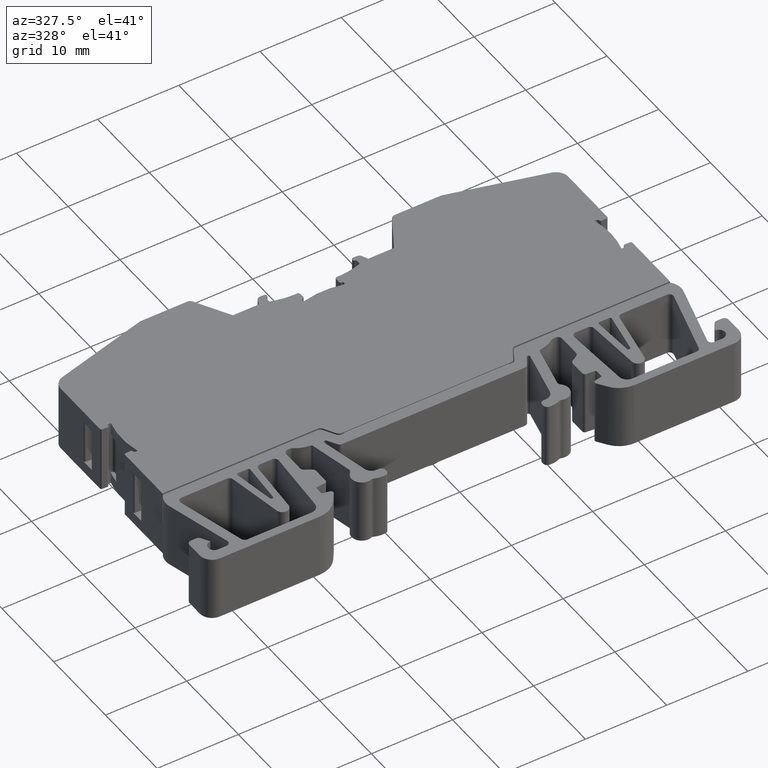
[diagram: clean part render]
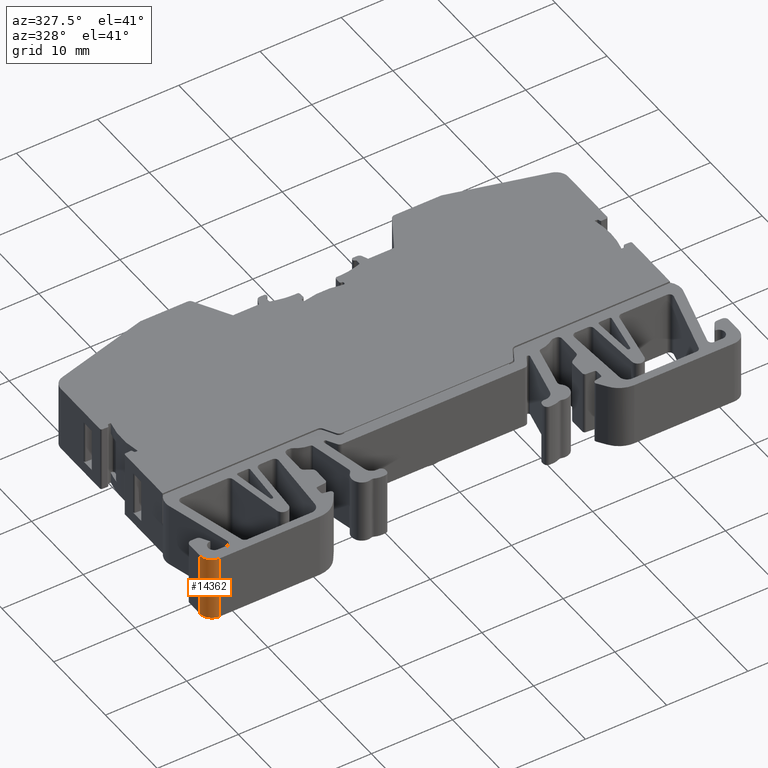
[diagram: same view with one face highlighted and labeled with its STEP entity id]
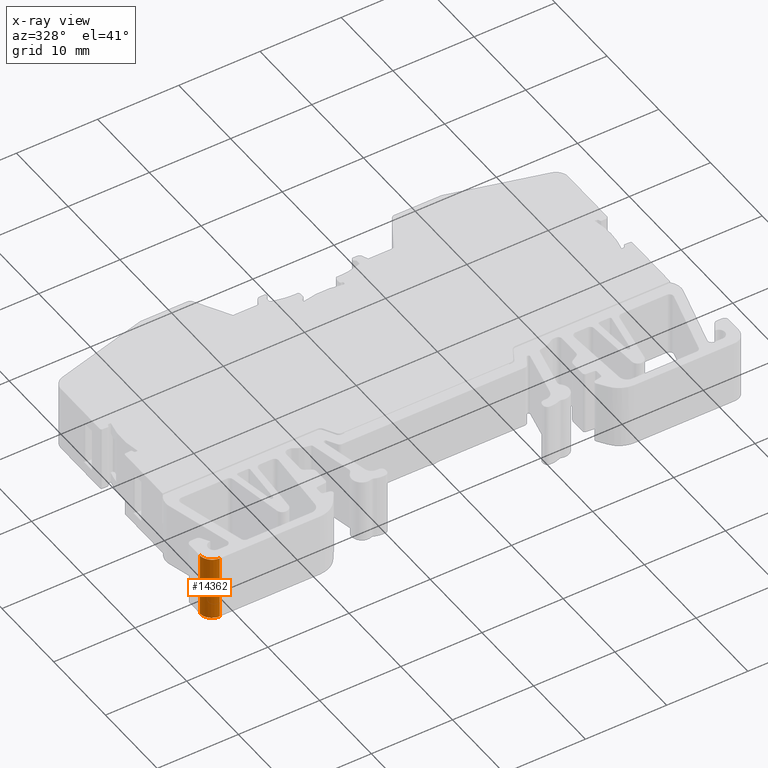
[diagram: x-ray of the same camera — body ghosted, the highlighted face saturated]
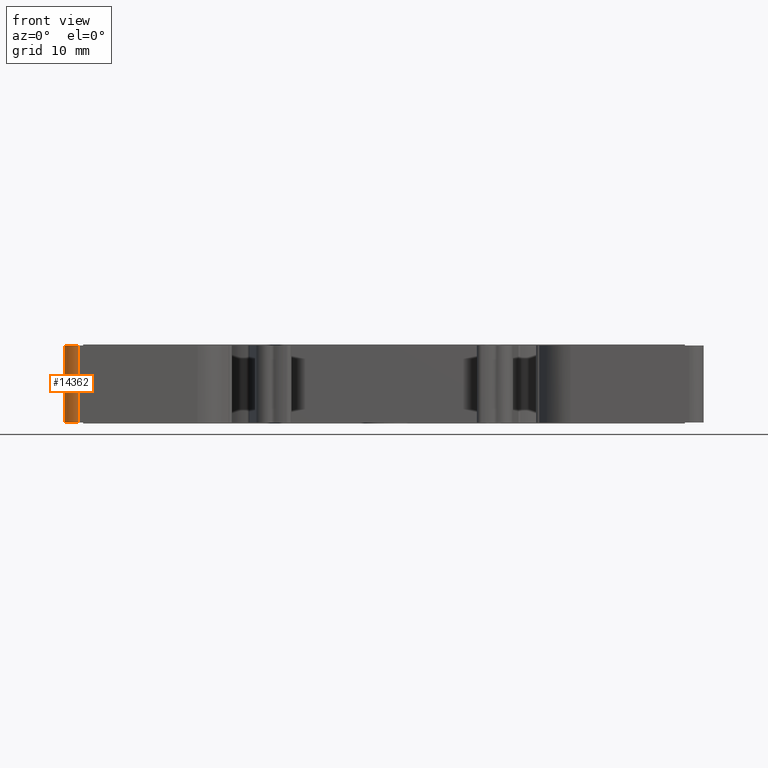
[diagram: same view with one face highlighted and labeled with its STEP entity id]
A machine part, auxiliary view. The second image highlights one B-rep face of the part: STEP entity #14362.
The next image is the same camera in x-ray: the body ghosted, the highlighted face saturated — about 0% of this face is hidden behind the body in this view.
A second angle (front view) of the same face is appended — the face is thin or edge-on in the first view.
In plain terms, the highlighted cylindrical surface (edge-blend (fillet) strip) has radius 1.5 mm, axis along (0, 0, -1).
Its self-contained STEP definition (entity closure, byte-faithful):
#2511 = CARTESIAN_POINT ( 'NONE',  ( 147.6236997450563700, -4.423864766311485400, -20.60000000000000100 ) ) ;
#3452 = EDGE_CURVE ( 'NONE', #14301, #14324, #6314, .T. ) ;
#3631 = EDGE_CURVE ( 'NONE', #14324, #13513, #6378, .T. ) ;
#3642 = EDGE_CURVE ( 'NONE', #13513, #13609, #6422, .T. ) ;
#3649 = EDGE_CURVE ( 'NONE', #13609, #14301, #9277, .T. ) ;
#4666 = CARTESIAN_POINT ( 'NONE',  ( 147.6236997450563400, -4.423864795650505500, -12.60000000000000000 ) ) ;
#4697 = CARTESIAN_POINT ( 'NONE',  ( 146.1236962811356400, -2.923860183846762600, -12.60000000000000000 ) ) ;
#4778 = CARTESIAN_POINT ( 'NONE',  ( 147.6236997450564000, -2.923861286785385300, -12.60000000000000000 ) ) ;
#4788 = CYLINDRICAL_SURFACE ( 'NONE', #10491, 1.500003463920235300 ) ;
#4805 = FACE_OUTER_BOUND ( 'NONE', #16904, .T. ) ;
#4806 = DIRECTION ( 'NONE',  ( 0.0000000000000000000, 0.0000000000000000000, -1.000000000000000000 ) ) ;
#4807 = DIRECTION ( 'NONE',  ( -1.000000000000000000, 0.0000000000000000000, 0.0000000000000000000 ) ) ;
#6314 = B_SPLINE_CURVE_WITH_KNOTS ( 'NONE', 3,
 ( #15248, #15241, #15228, #15232, #15231, #15250, #15203, #15249, #15229, #15246 ),
 .UNSPECIFIED., .F., .F.,
 ( 4, 2, 2, 2, 4 ),
 ( 0.0000000000000000000, 0.2500000000000000000, 0.5000000000000000000, 0.7500000000000000000, 1.000000000000000000 ),
 .UNSPECIFIED. ) ;
#6378 = B_SPLINE_CURVE_WITH_KNOTS ( 'NONE', 3,
 ( #9189, #9261, #9267, #9243 ),
 .UNSPECIFIED., .F., .F.,
 ( 4, 4 ),
 ( 0.0000000000000000000, 1.000000000000000000 ),
 .UNSPECIFIED. ) ;
#6422 = B_SPLINE_CURVE_WITH_KNOTS ( 'NONE', 3,
 ( #9259, #9265, #9301, #9286, #9300, #9278, #9274, #9268, #9283, #9271 ),
 .UNSPECIFIED., .F., .F.,
 ( 4, 2, 2, 2, 4 ),
 ( 0.0000000000000000000, 0.2500000000000002200, 0.5000000000000004400, 0.7500000000000002200, 1.000000000000000000 ),
 .UNSPECIFIED. ) ;
#6986 = VECTOR ( 'NONE', #9302, 1000.000000000000000 ) ;
#7637 = CARTESIAN_POINT ( 'NONE',  ( 146.1236962811366900, -2.923860183846763500, -20.60000000000000100 ) ) ;
#9189 = CARTESIAN_POINT ( 'NONE',  ( 146.1236962811356400, -2.923860183846762600, -12.60000000000000000 ) ) ;
#9243 = CARTESIAN_POINT ( 'NONE',  ( 146.1236962811366900, -2.923860183846763500, -20.60000000000000100 ) ) ;
#9259 = CARTESIAN_POINT ( 'NONE',  ( 146.1236962811366900, -2.923860183846763500, -20.60000000000000100 ) ) ;
#9261 = CARTESIAN_POINT ( 'NONE',  ( 146.1236962811361800, -2.923861164236650500, -15.26666666666666600 ) ) ;
#9265 = CARTESIAN_POINT ( 'NONE',  ( 146.1236962811362300, -3.120211281060845100, -20.60000000000000900 ) ) ;
#9267 = CARTESIAN_POINT ( 'NONE',  ( 146.1236962811361800, -2.923861409334120000, -17.93333333333474800 ) ) ;
#9268 = CARTESIAN_POINT ( 'NONE',  ( 147.2310770118436900, -4.384823675551517800, -20.60000000000000500 ) ) ;
#9271 = CARTESIAN_POINT ( 'NONE',  ( 147.6236997450563700, -4.423864766311485400, -20.60000000000000100 ) ) ;
#9274 = CARTESIAN_POINT ( 'NONE',  ( 146.8682695300040800, -4.234543896043113900, -20.60000000000000100 ) ) ;
#9277 = LINE ( 'NONE', #9291, #6986 ) ;
#9278 = CARTESIAN_POINT ( 'NONE',  ( 146.7018775363531800, -4.123364320364802700, -20.60000000000000100 ) ) ;
#9283 = CARTESIAN_POINT ( 'NONE',  ( 147.4273497507809900, -4.423864750705617700, -20.60000000000000100 ) ) ;
#9286 = CARTESIAN_POINT ( 'NONE',  ( 146.3130171357986500, -3.679291501837703500, -20.60000000000000100 ) ) ;
#9291 = CARTESIAN_POINT ( 'NONE',  ( 147.6236997450563700, -4.423864750705620400, -12.60000000000000000 ) ) ;
#9300 = CARTESIAN_POINT ( 'NONE',  ( 146.4241967114770100, -3.845683495488567700, -20.60000000000000100 ) ) ;
#9301 = CARTESIAN_POINT ( 'NONE',  ( 146.1627373562902200, -3.316484019998093400, -20.60000000000000100 ) ) ;
#9302 = DIRECTION ( 'NONE',  ( -0.0000000000000000000, -0.0000000000000000000, 1.000000000000000000 ) ) ;
#9943 = ORIENTED_EDGE ( 'NONE', *, *, #3631, .T. ) ;
#9995 = ORIENTED_EDGE ( 'NONE', *, *, #3452, .T. ) ;
#10011 = ORIENTED_EDGE ( 'NONE', *, *, #3649, .T. ) ;
#10017 = ORIENTED_EDGE ( 'NONE', *, *, #3642, .T. ) ;
#10491 = AXIS2_PLACEMENT_3D ( 'NONE', #4778, #4806, #4807 ) ;
#13513 = VERTEX_POINT ( 'NONE', #7637 ) ;
#13609 = VERTEX_POINT ( 'NONE', #2511 ) ;
#14301 = VERTEX_POINT ( 'NONE', #4666 ) ;
#14324 = VERTEX_POINT ( 'NONE', #4697 ) ;
#14362 = ADVANCED_FACE ( 'NONE', ( #4805 ), #4788, .T. ) ;
#15203 = CARTESIAN_POINT ( 'NONE',  ( 146.3130171357986700, -3.679291501837702600, -12.60000000000000100 ) ) ;
#15228 = CARTESIAN_POINT ( 'NONE',  ( 147.2310770118436100, -4.384823675551516900, -12.60000000000000100 ) ) ;
#15229 = CARTESIAN_POINT ( 'NONE',  ( 146.1236962811361800, -3.120211281060844700, -12.60000000000000100 ) ) ;
#15231 = CARTESIAN_POINT ( 'NONE',  ( 146.7018775363531800, -4.123364320364803600, -12.60000000000000100 ) ) ;
#15232 = CARTESIAN_POINT ( 'NONE',  ( 146.8682695300040300, -4.234543896043112100, -12.59999999999999400 ) ) ;
#15241 = CARTESIAN_POINT ( 'NONE',  ( 147.4273497507809100, -4.423864750705616800, -12.60000000000000000 ) ) ;
#15246 = CARTESIAN_POINT ( 'NONE',  ( 146.1236962811356400, -2.923860183846762600, -12.60000000000000000 ) ) ;
#15248 = CARTESIAN_POINT ( 'NONE',  ( 147.6236997450563400, -4.423864795650505500, -12.60000000000000000 ) ) ;
#15249 = CARTESIAN_POINT ( 'NONE',  ( 146.1627373562902500, -3.316484019998093800, -12.60000000000000100 ) ) ;
#15250 = CARTESIAN_POINT ( 'NONE',  ( 146.4241967114770100, -3.845683495488566400, -12.60000000000000000 ) ) ;
#16904 = EDGE_LOOP ( 'NONE', ( #10017, #10011, #9995, #9943 ) ) ;